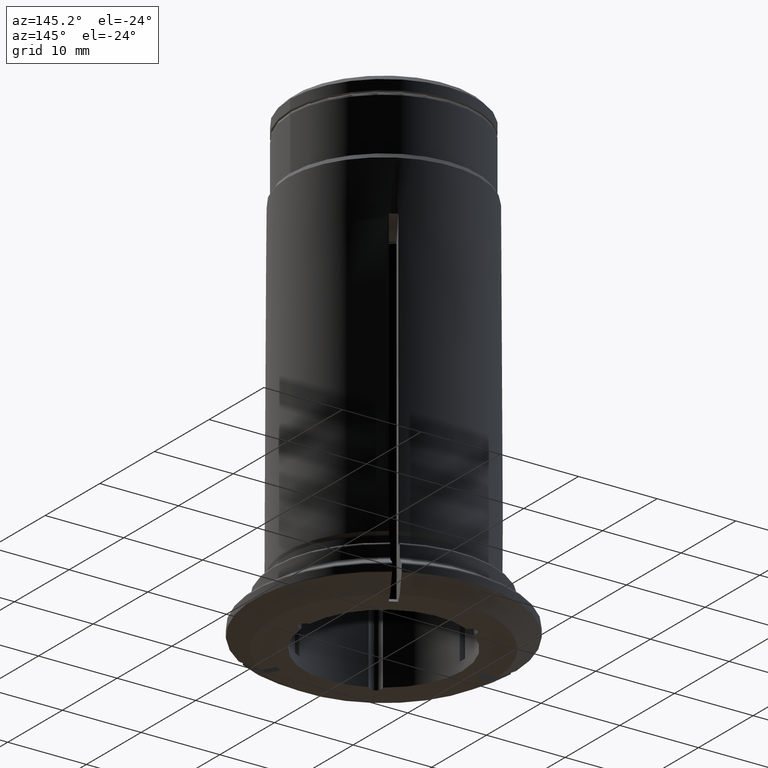
[diagram: clean part render]
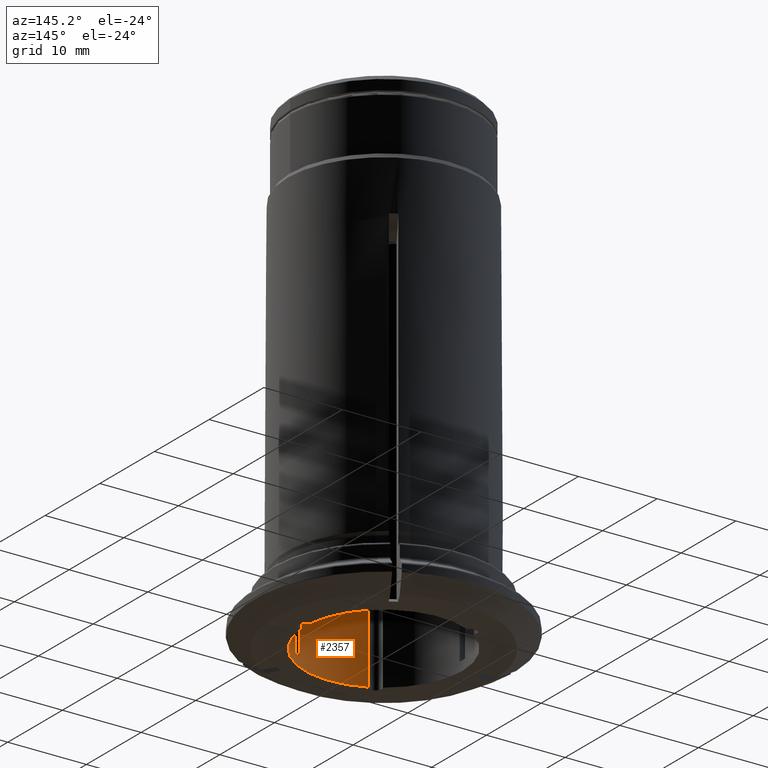
[diagram: same view with one face highlighted and labeled with its STEP entity id]
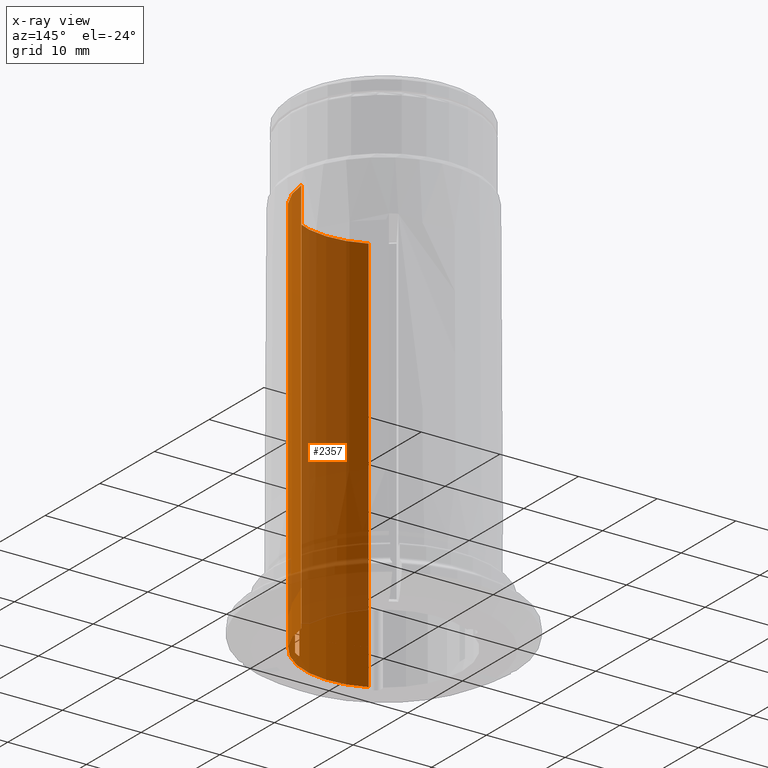
[diagram: x-ray of the same camera — body ghosted, the highlighted face saturated]
A machine part, auxiliary view. The second image highlights one B-rep face of the part: STEP entity #2357.
The next image is the same camera in x-ray: the body ghosted, the highlighted face saturated — about 72% of this face is hidden behind the body in this view.
In plain terms, the highlighted cylindrical surface (partial cylindrical patch) has radius 10 mm, axis along (0, 0, -1).
Its self-contained STEP definition (entity closure, byte-faithful):
#25=ELLIPSE('',#2547,11.5470053837925,10.);
#26=ELLIPSE('',#2548,14.1421356237309,10.);
#74=LINE('',#3604,#149);
#75=LINE('',#3609,#150);
#76=LINE('',#3612,#151);
#77=LINE('',#3617,#152);
#149=VECTOR('',#2964,1000.);
#150=VECTOR('',#2967,1000.);
#151=VECTOR('',#2970,1000.);
#152=VECTOR('',#2973,1000.);
#228=CYLINDRICAL_SURFACE('',#2546,10.);
#337=CIRCLE('',#2549,10.);
#338=CIRCLE('',#2550,10.);
#638=ORIENTED_EDGE('',*,*,#1025,.F.);
#639=ORIENTED_EDGE('',*,*,#1026,.F.);
#640=ORIENTED_EDGE('',*,*,#1027,.T.);
#641=ORIENTED_EDGE('',*,*,#1028,.F.);
#642=ORIENTED_EDGE('',*,*,#1029,.F.);
#643=ORIENTED_EDGE('',*,*,#1030,.T.);
#644=ORIENTED_EDGE('',*,*,#1031,.T.);
#645=ORIENTED_EDGE('',*,*,#1032,.F.);
#1025=EDGE_CURVE('',#1228,#1229,#74,.T.);
#1026=EDGE_CURVE('',#1230,#1228,#25,.T.);
#1027=EDGE_CURVE('',#1230,#1231,#75,.T.);
#1028=EDGE_CURVE('',#1229,#1231,#26,.T.);
#1029=EDGE_CURVE('',#1232,#1233,#76,.T.);
#1030=EDGE_CURVE('',#1232,#1234,#337,.T.);
#1031=EDGE_CURVE('',#1234,#1235,#77,.T.);
#1032=EDGE_CURVE('',#1233,#1235,#338,.T.);
#1228=VERTEX_POINT('',#3605);
#1229=VERTEX_POINT('',#3606);
#1230=VERTEX_POINT('',#3608);
#1231=VERTEX_POINT('',#3610);
#1232=VERTEX_POINT('',#3613);
#1233=VERTEX_POINT('',#3614);
#1234=VERTEX_POINT('',#3616);
#1235=VERTEX_POINT('',#3618);
#1417=EDGE_LOOP('',(#638,#639,#640,#641));
#1418=EDGE_LOOP('',(#642,#643,#644,#645));
#1555=FACE_BOUND('',#1417,.T.);
#1556=FACE_BOUND('',#1418,.T.);
#2357=ADVANCED_FACE('',(#1555,#1556),#228,.F.);
#2546=AXIS2_PLACEMENT_3D('',#3603,#2962,#2963);
#2547=AXIS2_PLACEMENT_3D('',#3607,#2965,#2966);
#2548=AXIS2_PLACEMENT_3D('',#3611,#2968,#2969);
#2549=AXIS2_PLACEMENT_3D('',#3615,#2971,#2972);
#2550=AXIS2_PLACEMENT_3D('',#3619,#2974,#2975);
#2962=DIRECTION('',(0.,0.,-1.));
#2963=DIRECTION('',(-1.,0.,0.));
#2964=DIRECTION('',(0.,0.,1.));
#2965=DIRECTION('',(-0.25,0.433012701892219,-0.866025403784439));
#2966=DIRECTION('',(-0.433012701892219,0.75,0.5));
#2967=DIRECTION('',(0.,0.,1.));
#2968=DIRECTION('',(-0.353553390593274,0.612372435695795,0.707106781186547));
#2969=DIRECTION('',(0.353553390593274,-0.612372435695794,0.707106781186548));
#2970=DIRECTION('',(0.,0.,-1.));
#2971=DIRECTION('',(0.,0.,1.));
#2972=DIRECTION('',(1.,0.,0.));
#2973=DIRECTION('',(0.,0.,-1.));
#2974=DIRECTION('',(0.,0.,1.));
#2975=DIRECTION('',(-1.,0.,0.));
#3603=CARTESIAN_POINT('',(-3.03576608295941E-15,0.,0.));
#3604=CARTESIAN_POINT('',(4.56073338696733,-8.8994219460031,0.));
#3605=CARTESIAN_POINT('',(4.56073338696733,-8.8994219460031,1.2337187026646));
#3606=CARTESIAN_POINT('',(4.56073338696733,-8.89942194600309,41.9874921777191));
#3607=CARTESIAN_POINT('',(-3.03576608295941E-15,0.,7.));
#3608=CARTESIAN_POINT('',(5.42675879075177,-8.39942194600309,1.2337187026646));
#3609=CARTESIAN_POINT('',(5.42675879075177,-8.39942194600309,0.));
#3610=CARTESIAN_POINT('',(5.42675879075177,-8.39942194600309,41.9874921777191));
#3611=CARTESIAN_POINT('',(-3.03576608295941E-15,0.,32.));
#3612=CARTESIAN_POINT('',(-4.33687530091486,-9.01063330872557,37.4174090497992));
#3613=CARTESIAN_POINT('',(-4.33687530091485,-9.01063330872557,50.6689893600917));
#3614=CARTESIAN_POINT('',(-4.33687530091486,-9.01063330872557,0.));
#3615=CARTESIAN_POINT('',(0.,0.,50.6689893600917));
#3616=CARTESIAN_POINT('',(9.971875,-0.749472470725243,50.6689893600917));
#3617=CARTESIAN_POINT('',(9.971875,-0.749472470725243,37.4174090497992));
#3618=CARTESIAN_POINT('',(9.971875,-0.749472470725243,0.));
#3619=CARTESIAN_POINT('',(-3.03576608295941E-15,0.,0.));